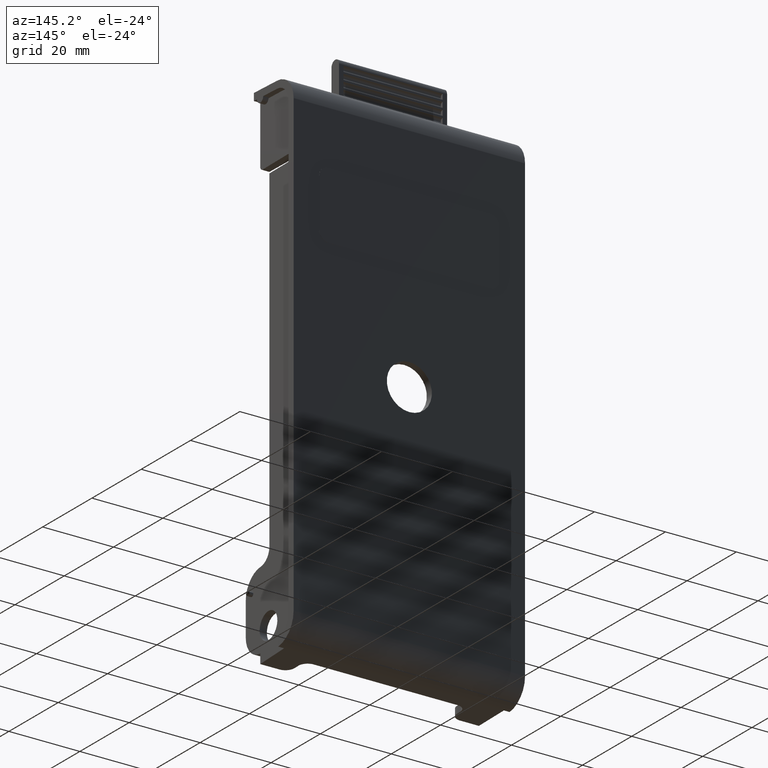
[diagram: clean part render]
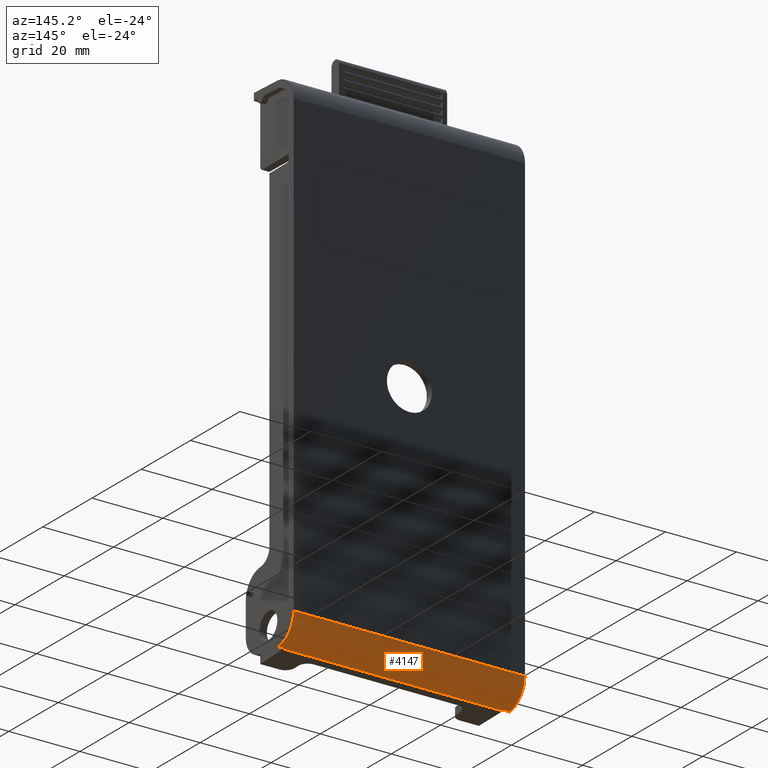
[diagram: same view with one face highlighted and labeled with its STEP entity id]
A machine part, auxiliary view. The second image highlights one B-rep face of the part: STEP entity #4147.
In plain terms, the highlighted cylindrical surface (edge-blend (fillet) strip) has radius 6.858 mm, axis along (-1, 0, 0).
Its self-contained STEP definition (entity closure, byte-faithful):
#9 = VERTEX_POINT ( 'NONE', #1988 ) ;
#108 = EDGE_LOOP ( 'NONE', ( #944, #3030, #4297, #3915, #346, #2092, #3770, #3722 ) ) ;
#185 = DIRECTION ( 'NONE',  ( 1.000000000000000000, -0.0000000000000000000, -0.0000000000000000000 ) ) ;
#196 = CARTESIAN_POINT ( 'NONE',  ( 1.224499999999999900, 0.6350000000000000100, -2.557089342174827500 ) ) ;
#219 = CARTESIAN_POINT ( 'NONE',  ( 1.224499999999999900, 0.3744228641096763500, -2.826924865469984100 ) ) ;
#273 = DIRECTION ( 'NONE',  ( -1.000000000000000000, 0.0000000000000000000, 0.0000000000000000000 ) ) ;
#346 = ORIENTED_EDGE ( 'NONE', *, *, #1841, .F. ) ;
#357 = CYLINDRICAL_SURFACE ( 'NONE', #4457, 0.2700000000000001300 ) ;
#376 = VERTEX_POINT ( 'NONE', #4835 ) ;
#715 = DIRECTION ( 'NONE',  ( -1.000000000000000000, 0.0000000000000000000, 0.0000000000000000000 ) ) ;
#853 = VECTOR ( 'NONE', #2613, 39.37007874015748100 ) ;
#868 = FACE_OUTER_BOUND ( 'NONE', #108, .T. ) ;
#876 = VERTEX_POINT ( 'NONE', #3729 ) ;
#944 = ORIENTED_EDGE ( 'NONE', *, *, #3209, .F. ) ;
#987 = LINE ( 'NONE', #196, #3416 ) ;
#1035 = CIRCLE ( 'NONE', #2691, 0.2700000000000006800 ) ;
#1202 = CARTESIAN_POINT ( 'NONE',  ( -1.219951609174225300, 0.3744228641096764600, -2.826924865469985400 ) ) ;
#1221 = CARTESIAN_POINT ( 'NONE',  ( -1.220207332120088100, 0.3890732218662750800, -2.826014015622574100 ) ) ;
#1286 = VERTEX_POINT ( 'NONE', #2570 ) ;
#1426 =( BOUNDED_CURVE ( )  B_SPLINE_CURVE ( 3, ( #2090, #2085, #2125, #2136 ),
 .UNSPECIFIED., .F., .T. ) 
 B_SPLINE_CURVE_WITH_KNOTS ( ( 4, 4 ),
 ( 1.605702911834787000, 1.660074962351179900 ),
 .UNSPECIFIED. ) 
 CURVE ( )  GEOMETRIC_REPRESENTATION_ITEM ( )  RATIONAL_B_SPLINE_CURVE ( ( 1.000000000000000000, 0.9997536551831576200, 0.9997536551831576200, 1.000000000000000000 ) ) 
 REPRESENTATION_ITEM ( '' )  );
#1546 = CARTESIAN_POINT ( 'NONE',  ( 1.284500000000000000, 0.3650000000000000500, -2.557089342174827500 ) ) ;
#1554 = DIRECTION ( 'NONE',  ( -1.000000000000000000, 0.0000000000000000000, 0.0000000000000000000 ) ) ;
#1557 = DIRECTION ( 'NONE',  ( 0.0000000000000000000, 0.0000000000000000000, 1.000000000000000000 ) ) ;
#1637 = CARTESIAN_POINT ( 'NONE',  ( 1.220207332120088400, 0.3890732218662750800, -2.826014015622574100 ) ) ;
#1736 = EDGE_CURVE ( 'NONE', #876, #376, #1035, .T. ) ;
#1804 = CARTESIAN_POINT ( 'NONE',  ( -1.220207332120088100, 0.3890732218662750800, -2.826014015622574100 ) ) ;
#1841 = EDGE_CURVE ( 'NONE', #2964, #9, #2412, .T. ) ;
#1904 = EDGE_CURVE ( 'NONE', #2642, #5165, #2614, .T. ) ;
#1927 = EDGE_CURVE ( 'NONE', #2642, #1286, #2580, .T. ) ;
#1936 = EDGE_CURVE ( 'NONE', #876, #2964, #987, .T. ) ;
#1988 = CARTESIAN_POINT ( 'NONE',  ( -1.284500000000000000, 0.3890732218662750800, -2.826014015622574600 ) ) ;
#2085 = CARTESIAN_POINT ( 'NONE',  ( 1.220036983748362900, 0.3793139701862706700, -2.826754064282122500 ) ) ;
#2090 = CARTESIAN_POINT ( 'NONE',  ( 1.219951609174225300, 0.3744228641096763500, -2.826924865469984100 ) ) ;
#2092 = ORIENTED_EDGE ( 'NONE', *, *, #1936, .F. ) ;
#2125 = CARTESIAN_POINT ( 'NONE',  ( 1.220122245734165600, 0.3841986260814653800, -2.826450372853509300 ) ) ;
#2136 = CARTESIAN_POINT ( 'NONE',  ( 1.220207332120088400, 0.3890732218662750800, -2.826014015622574100 ) ) ;
#2165 = CARTESIAN_POINT ( 'NONE',  ( -1.284500000000000000, 0.3650000000000000500, -2.557089342174827500 ) ) ;
#2173 = DIRECTION ( 'NONE',  ( -1.000000000000000000, -0.0000000000000000000, -0.0000000000000000000 ) ) ;
#2180 = DIRECTION ( 'NONE',  ( 0.0000000000000000000, 0.0000000000000000000, 1.000000000000000000 ) ) ;
#2300 = CARTESIAN_POINT ( 'NONE',  ( -1.220036983748362900, 0.3793139701862706700, -2.826754064282122500 ) ) ;
#2343 = CARTESIAN_POINT ( 'NONE',  ( -1.284500000000000000, 0.6350000000000007900, -2.557089342174827500 ) ) ;
#2412 = CIRCLE ( 'NONE', #3133, 0.2700000000000006800 ) ;
#2413 = CARTESIAN_POINT ( 'NONE',  ( -1.220122245734165400, 0.3841986260814654300, -2.826450372853509300 ) ) ;
#2482 = LINE ( 'NONE', #4601, #4171 ) ;
#2570 = CARTESIAN_POINT ( 'NONE',  ( 1.219951609174225300, 0.3744228641096763500, -2.826924865469984100 ) ) ;
#2580 = LINE ( 'NONE', #219, #5054 ) ;
#2606 = EDGE_CURVE ( 'NONE', #4619, #376, #2482, .T. ) ;
#2609 = CARTESIAN_POINT ( 'NONE',  ( 1.224499999999999900, 0.3890732218662750800, -2.826014015622574100 ) ) ;
#2613 = DIRECTION ( 'NONE',  ( 1.000000000000000000, -0.0000000000000000000, -0.0000000000000000000 ) ) ;
#2614 =( BOUNDED_CURVE ( )  B_SPLINE_CURVE ( 3, ( #1202, #2300, #2413, #1221 ),
 .UNSPECIFIED., .F., .F. ) 
 B_SPLINE_CURVE_WITH_KNOTS ( ( 4, 4 ),
 ( 4.747295565424580300, 4.801667615940973000 ),
 .UNSPECIFIED. ) 
 CURVE ( )  GEOMETRIC_REPRESENTATION_ITEM ( )  RATIONAL_B_SPLINE_CURVE ( ( 1.000000000000000000, 0.9997536551831576200, 0.9997536551831576200, 1.000000000000000000 ) ) 
 REPRESENTATION_ITEM ( '' )  );
#2642 = VERTEX_POINT ( 'NONE', #4515 ) ;
#2691 = AXIS2_PLACEMENT_3D ( 'NONE', #1546, #1554, #1557 ) ;
#2786 = DIRECTION ( 'NONE',  ( 0.0000000000000000000, 0.0000000000000000000, 1.000000000000000000 ) ) ;
#2964 = VERTEX_POINT ( 'NONE', #2343 ) ;
#3030 = ORIENTED_EDGE ( 'NONE', *, *, #1927, .F. ) ;
#3133 = AXIS2_PLACEMENT_3D ( 'NONE', #2165, #2173, #2180 ) ;
#3209 = EDGE_CURVE ( 'NONE', #1286, #4619, #1426, .T. ) ;
#3241 = EDGE_CURVE ( 'NONE', #9, #5165, #3996, .T. ) ;
#3295 = DIRECTION ( 'NONE',  ( 1.000000000000000000, -0.0000000000000000000, -0.0000000000000000000 ) ) ;
#3366 = CARTESIAN_POINT ( 'NONE',  ( 1.224499999999999900, 0.3650000000000000500, -2.557089342174827500 ) ) ;
#3416 = VECTOR ( 'NONE', #273, 39.37007874015748100 ) ;
#3722 = ORIENTED_EDGE ( 'NONE', *, *, #2606, .F. ) ;
#3729 = CARTESIAN_POINT ( 'NONE',  ( 1.284500000000000000, 0.6350000000000007900, -2.557089342174827500 ) ) ;
#3770 = ORIENTED_EDGE ( 'NONE', *, *, #1736, .T. ) ;
#3915 = ORIENTED_EDGE ( 'NONE', *, *, #3241, .F. ) ;
#3996 = LINE ( 'NONE', #2609, #853 ) ;
#4147 = ADVANCED_FACE ( 'NONE', ( #868 ), #357, .T. ) ;
#4171 = VECTOR ( 'NONE', #3295, 39.37007874015748100 ) ;
#4297 = ORIENTED_EDGE ( 'NONE', *, *, #1904, .T. ) ;
#4457 = AXIS2_PLACEMENT_3D ( 'NONE', #3366, #715, #2786 ) ;
#4515 = CARTESIAN_POINT ( 'NONE',  ( -1.219951609174225300, 0.3744228641096764600, -2.826924865469985400 ) ) ;
#4601 = CARTESIAN_POINT ( 'NONE',  ( 1.224499999999999900, 0.3890732218662750800, -2.826014015622574100 ) ) ;
#4619 = VERTEX_POINT ( 'NONE', #1637 ) ;
#4835 = CARTESIAN_POINT ( 'NONE',  ( 1.284500000000000000, 0.3890732218662751300, -2.826014015622574600 ) ) ;
#5054 = VECTOR ( 'NONE', #185, 39.37007874015748100 ) ;
#5165 = VERTEX_POINT ( 'NONE', #1804 ) ;